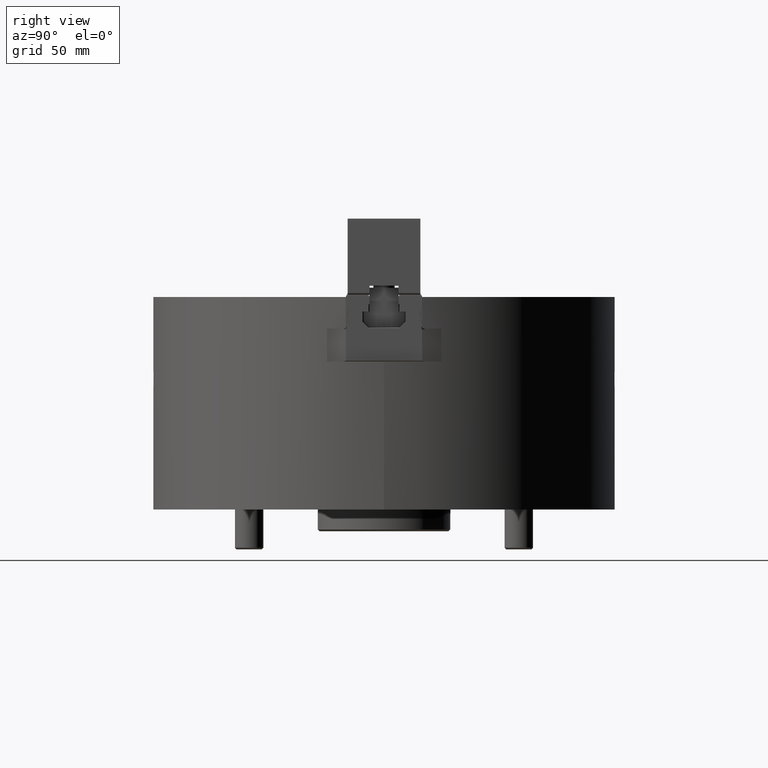
[diagram: clean part render]
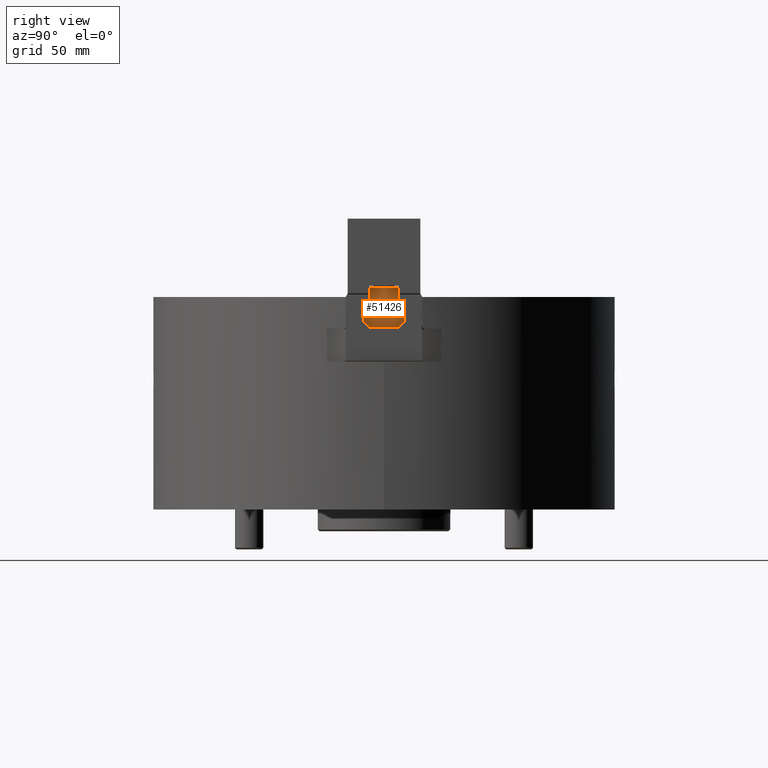
[diagram: same view with one face highlighted and labeled with its STEP entity id]
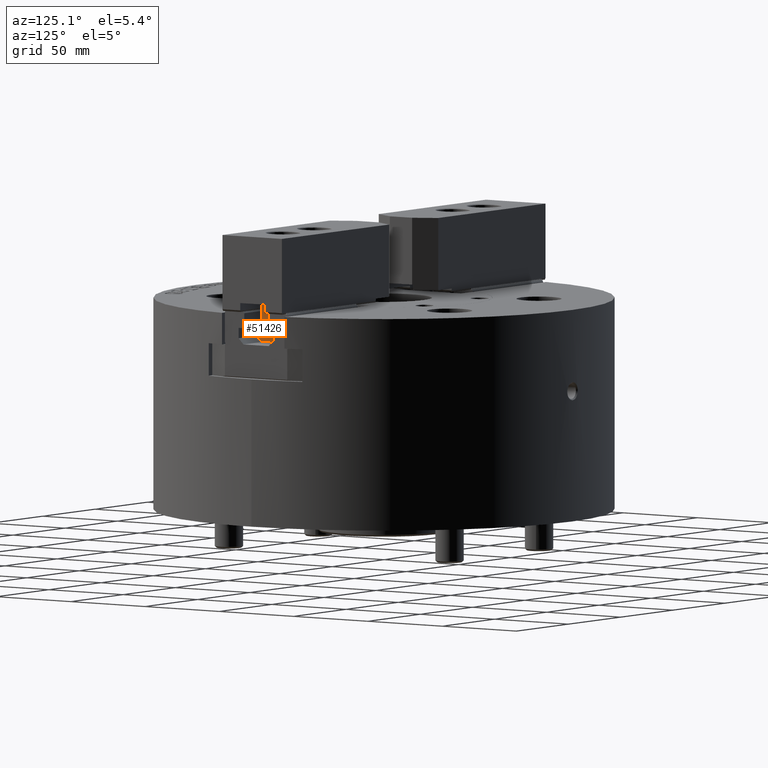
[diagram: same view with one face highlighted and labeled with its STEP entity id]
A machine part, right view. The second image highlights one B-rep face of the part: STEP entity #51426.
A second angle (auxiliary view) of the same face is appended — the face is thin or edge-on in the first view.
In plain terms, the highlighted planar face has unit normal (-1, 0, 0).
Its self-contained STEP definition (entity closure, byte-faithful):
#9905=ORIENTED_EDGE('',*,*,#21563,.F.);
#9906=ORIENTED_EDGE('',*,*,#21581,.T.);
#9907=ORIENTED_EDGE('',*,*,#21574,.F.);
#9908=ORIENTED_EDGE('',*,*,#21582,.T.);
#9909=ORIENTED_EDGE('',*,*,#21570,.F.);
#9910=ORIENTED_EDGE('',*,*,#19191,.F.);
#9911=ORIENTED_EDGE('',*,*,#20031,.F.);
#9912=ORIENTED_EDGE('',*,*,#20035,.F.);
#9913=ORIENTED_EDGE('',*,*,#19183,.F.);
#9914=ORIENTED_EDGE('',*,*,#21569,.F.);
#9915=ORIENTED_EDGE('',*,*,#20051,.F.);
#9916=ORIENTED_EDGE('',*,*,#21565,.F.);
#9917=ORIENTED_EDGE('',*,*,#20286,.T.);
#9918=ORIENTED_EDGE('',*,*,#21564,.F.);
#9919=ORIENTED_EDGE('',*,*,#19175,.F.);
#9920=ORIENTED_EDGE('',*,*,#20042,.F.);
#9921=ORIENTED_EDGE('',*,*,#20032,.F.);
#9922=ORIENTED_EDGE('',*,*,#19167,.F.);
#19167=EDGE_CURVE('',#26755,#26756,#31625,.T.);
#19175=EDGE_CURVE('',#26762,#26763,#31632,.T.);
#19183=EDGE_CURVE('',#26770,#26771,#31640,.T.);
#19191=EDGE_CURVE('',#26778,#26779,#31648,.T.);
#20031=EDGE_CURVE('',#27019,#26778,#32289,.T.);
#20032=EDGE_CURVE('',#26756,#27020,#32290,.T.);
#20035=EDGE_CURVE('',#26771,#27019,#32293,.T.);
#20042=EDGE_CURVE('',#27020,#26762,#32300,.T.);
#20051=EDGE_CURVE('',#27031,#27032,#32309,.T.);
#20286=EDGE_CURVE('',#27266,#27265,#32486,.T.);
#21563=EDGE_CURVE('',#27865,#26755,#33555,.T.);
#21564=EDGE_CURVE('',#26763,#27265,#33556,.T.);
#21565=EDGE_CURVE('',#27266,#27031,#33557,.T.);
#21569=EDGE_CURVE('',#27032,#26770,#33559,.T.);
#21570=EDGE_CURVE('',#26779,#27868,#33560,.T.);
#21574=EDGE_CURVE('',#27871,#27872,#33562,.T.);
#21581=EDGE_CURVE('',#27865,#27872,#33569,.T.);
#21582=EDGE_CURVE('',#27871,#27868,#33570,.T.);
#26755=VERTEX_POINT('',#75530);
#26756=VERTEX_POINT('',#75531);
#26762=VERTEX_POINT('',#75546);
#26763=VERTEX_POINT('',#75547);
#26770=VERTEX_POINT('',#75564);
#26771=VERTEX_POINT('',#75565);
#26778=VERTEX_POINT('',#75582);
#26779=VERTEX_POINT('',#75583);
#27019=VERTEX_POINT('',#76889);
#27020=VERTEX_POINT('',#76893);
#27031=VERTEX_POINT('',#76927);
#27032=VERTEX_POINT('',#76929);
#27265=VERTEX_POINT('',#77397);
#27266=VERTEX_POINT('',#77399);
#27865=VERTEX_POINT('',#79785);
#27868=VERTEX_POINT('',#79800);
#27871=VERTEX_POINT('',#79808);
#27872=VERTEX_POINT('',#79809);
#31625=LINE('',#75529,#38064);
#31632=LINE('',#75545,#38071);
#31640=LINE('',#75563,#38079);
#31648=LINE('',#75581,#38087);
#32289=LINE('',#76890,#38728);
#32290=LINE('',#76892,#38729);
#32293=LINE('',#76897,#38732);
#32300=LINE('',#76911,#38739);
#32309=LINE('',#76928,#38748);
#32486=LINE('',#77398,#38925);
#33555=LINE('',#79786,#39994);
#33556=LINE('',#79788,#39995);
#33557=LINE('',#79790,#39996);
#33559=LINE('',#79797,#39998);
#33560=LINE('',#79799,#39999);
#33562=LINE('',#79807,#40001);
#33569=LINE('',#79822,#40008);
#33570=LINE('',#79823,#40009);
#38064=VECTOR('',#58561,1000.);
#38071=VECTOR('',#58572,1000.);
#38079=VECTOR('',#58584,1000.);
#38087=VECTOR('',#58596,1000.);
#38728=VECTOR('',#60089,1000.);
#38729=VECTOR('',#60092,1000.);
#38732=VECTOR('',#60097,1000.);
#38739=VECTOR('',#60108,1000.);
#38748=VECTOR('',#60121,1000.);
#38925=VECTOR('',#60416,1000.);
#39994=VECTOR('',#62923,1000.);
#39995=VECTOR('',#62926,1000.);
#39996=VECTOR('',#62929,1000.);
#39998=VECTOR('',#62937,1000.);
#39999=VECTOR('',#62940,1000.);
#40001=VECTOR('',#62948,1000.);
#40008=VECTOR('',#62959,1000.);
#40009=VECTOR('',#62960,1000.);
#44401=EDGE_LOOP('',(#9905,#9906,#9907,#9908,#9909,#9910,#9911,#9912,#9913,
#9914,#9915,#9916,#9917,#9918,#9919,#9920,#9921,#9922));
#47092=FACE_BOUND('',#44401,.T.);
#49374=PLANE('',#54381);
#51426=ADVANCED_FACE('',(#47092),#49374,.F.);
#54381=AXIS2_PLACEMENT_3D('',#79821,#62957,#62958);
#58561=DIRECTION('',(0.,1.,0.));
#58572=DIRECTION('',(0.,2.66880534765663E-16,1.));
#58584=DIRECTION('',(0.,2.66880534765663E-16,-1.));
#58596=DIRECTION('',(0.,1.,0.));
#60089=DIRECTION('',(0.,1.,0.));
#60092=DIRECTION('',(0.,1.,0.));
#60097=DIRECTION('',(0.,2.66880534765663E-16,-1.));
#60108=DIRECTION('',(0.,2.66880534765663E-16,1.));
#60121=DIRECTION('',(0.,2.66880534765663E-16,-1.));
#60416=DIRECTION('',(0.,0.,-1.));
#62923=DIRECTION('',(0.,4.08170229641601E-16,1.));
#62926=DIRECTION('',(0.,2.66880534765663E-16,1.));
#62929=DIRECTION('',(0.,1.,0.));
#62937=DIRECTION('',(0.,2.66880534765663E-16,-1.));
#62940=DIRECTION('',(0.,4.08170229641601E-16,-1.));
#62948=DIRECTION('',(0.,-1.,0.));
#62957=DIRECTION('',(-1.,0.,0.));
#62958=DIRECTION('',(0.,0.,-1.));
#62959=DIRECTION('',(0.,0.707106781186547,-0.707106781186548));
#62960=DIRECTION('',(0.,0.707106781186547,0.707106781186548));
#75529=CARTESIAN_POINT('',(106.25,-11.2500000000001,-7.999999999999));
#75530=CARTESIAN_POINT('',(106.25,-11.2500000000001,-7.999999999999));
#75531=CARTESIAN_POINT('',(106.25,-8.49999999999991,-7.999999999999));
#75545=CARTESIAN_POINT('',(106.25,-8.00000000000008,-7.999999999999));
#75546=CARTESIAN_POINT('',(106.25,-8.00000000000002,-4.));
#75547=CARTESIAN_POINT('',(106.25,-8.00000000000007,0.267949192431252));
#75563=CARTESIAN_POINT('',(106.25,7.99999999999992,5.000000000001));
#75564=CARTESIAN_POINT('',(106.25,7.99999999999998,0.267949192431205));
#75565=CARTESIAN_POINT('',(106.25,7.99999999999993,-3.99999999999991));
#75581=CARTESIAN_POINT('',(106.25,7.99999999999992,-7.999999999999));
#75582=CARTESIAN_POINT('',(106.25,8.49999999999989,-7.999999999999));
#75583=CARTESIAN_POINT('',(106.25,11.2499999999999,-7.999999999999));
#76889=CARTESIAN_POINT('',(106.25,7.99999999999992,-7.999999999999));
#76890=CARTESIAN_POINT('',(106.25,7.99999999999992,-7.999999999999));
#76892=CARTESIAN_POINT('',(106.25,-11.2500000000001,-7.999999999999));
#76893=CARTESIAN_POINT('',(106.25,-8.00000000000008,-7.999999999999));
#76897=CARTESIAN_POINT('',(106.25,7.99999999999992,5.000000000001));
#76911=CARTESIAN_POINT('',(106.25,-8.00000000000008,-7.999999999999));
#76927=CARTESIAN_POINT('',(106.25,7.99999999999992,5.000000000001));
#76928=CARTESIAN_POINT('',(106.25,7.99999999999992,5.000000000001));
#76929=CARTESIAN_POINT('',(106.25,7.99999999999993,1.38301270189326));
#77397=CARTESIAN_POINT('',(106.25,-8.00000000000007,1.38301270189329));
#77398=CARTESIAN_POINT('',(106.25,-8.00000000000008,1.200000000001));
#77399=CARTESIAN_POINT('',(106.25,-8.00000000000008,5.000000000001));
#79785=CARTESIAN_POINT('',(106.25,-11.2500000000001,-13.299999999999));
#79786=CARTESIAN_POINT('',(106.25,-11.2500000000001,-16.499999999999));
#79788=CARTESIAN_POINT('',(106.25,-8.00000000000008,-7.999999999999));
#79790=CARTESIAN_POINT('',(106.25,-8.00000000000008,5.000000000001));
#79797=CARTESIAN_POINT('',(106.25,7.99999999999992,5.000000000001));
#79799=CARTESIAN_POINT('',(106.25,11.2499999999999,-7.999999999999));
#79800=CARTESIAN_POINT('',(106.25,11.2499999999999,-13.299999999999));
#79807=CARTESIAN_POINT('',(106.25,11.2499999999999,-16.499999999999));
#79808=CARTESIAN_POINT('',(106.25,8.04999999999992,-16.499999999999));
#79809=CARTESIAN_POINT('',(106.25,-8.05000000000008,-16.499999999999));
#79821=CARTESIAN_POINT('',(106.25,-11.2500000000001,-7.999999999999));
#79822=CARTESIAN_POINT('',(106.25,-8.05000000000008,-16.499999999999));
#79823=CARTESIAN_POINT('',(106.25,11.2499999999999,-13.299999999999));